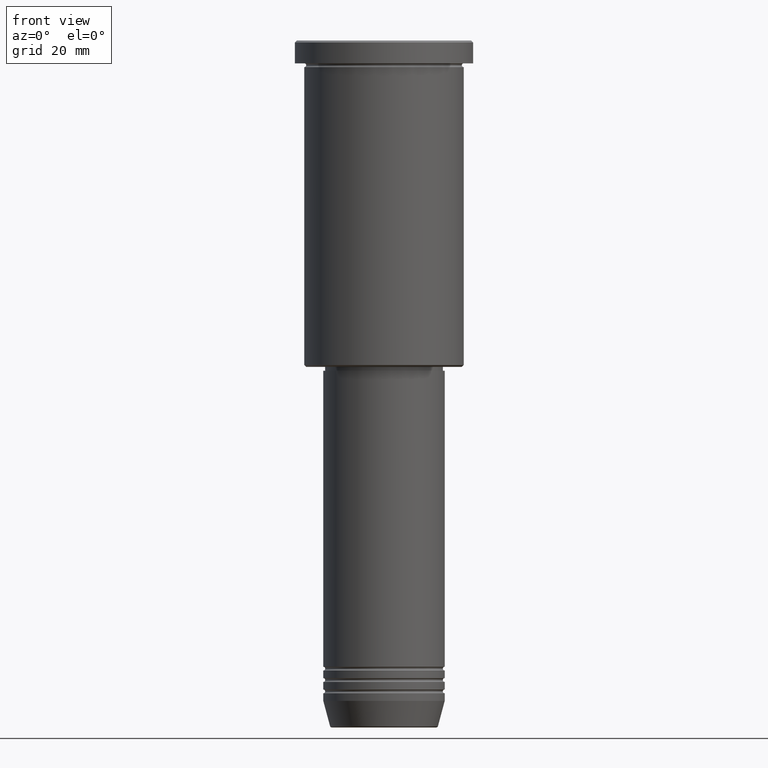
[diagram: clean part render]
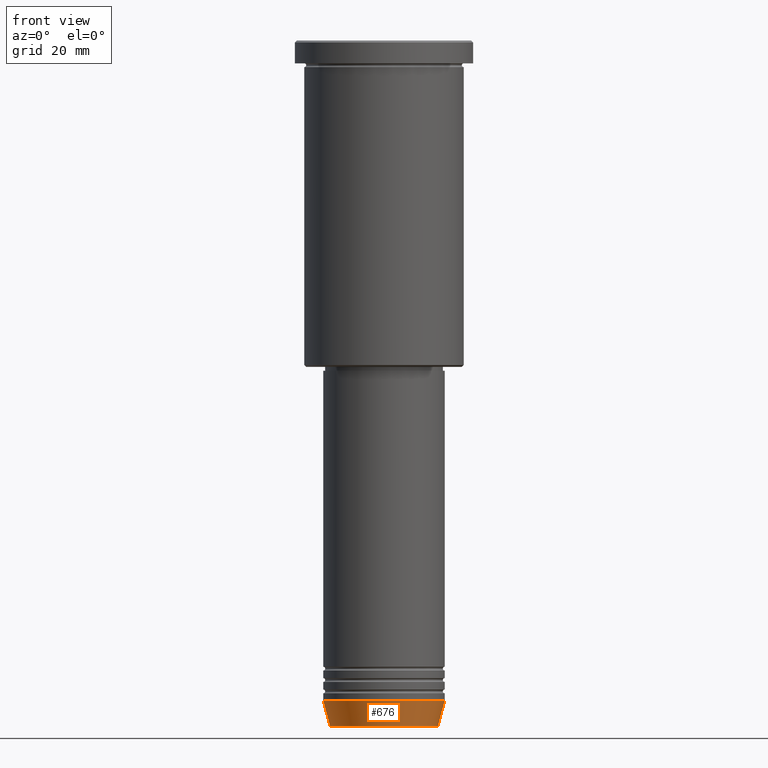
[diagram: same view with one face highlighted and labeled with its STEP entity id]
A machine part, front view. The second image highlights one B-rep face of the part: STEP entity #676.
In plain terms, the highlighted conical surface has half-angle 15 deg.
Its self-contained STEP definition (entity closure, byte-faithful):
#17 = AXIS2_PLACEMENT_3D ( 'NONE', #144, #511, #1066 ) ;
#71 = DIRECTION ( 'NONE',  ( 1.000000000000000000, 0.000000000000000000, 0.000000000000000000 ) ) ;
#144 = CARTESIAN_POINT ( 'NONE',  ( 0.000000000000000000, 0.000000000000000000, -174.0000000000000284 ) ) ;
#241 = ORIENTED_EDGE ( 'NONE', *, *, #417, .T. ) ;
#253 = CARTESIAN_POINT ( 'NONE',  ( 0.000000000000000000, 0.000000000000000000, -180.6294095225512422 ) ) ;
#291 = AXIS2_PLACEMENT_3D ( 'NONE', #363, #994, #71 ) ;
#363 = CARTESIAN_POINT ( 'NONE',  ( 0.000000000000000000, 0.000000000000000000, -174.0000000000000284 ) ) ;
#392 = LINE ( 'NONE', #758, #882 ) ;
#417 = EDGE_CURVE ( 'NONE', #739, #861, #919, .T. ) ;
#445 = DIRECTION ( 'NONE',  ( -0.000000000000000000, -0.000000000000000000, 1.000000000000000000 ) ) ;
#492 = CARTESIAN_POINT ( 'NONE',  ( -16.00000000000000000, 1.959434878635765131E-15, -174.0000000000000284 ) ) ;
#499 = VECTOR ( 'NONE', #710, 1000.000000000000000 ) ;
#511 = DIRECTION ( 'NONE',  ( -0.000000000000000000, -0.000000000000000000, 1.000000000000000000 ) ) ;
#600 = CIRCLE ( 'NONE', #17, 16.00000000000000000 ) ;
#610 = CARTESIAN_POINT ( 'NONE',  ( 16.00000000000000000, 0.000000000000000000, -174.0000000000000284 ) ) ;
#663 = CARTESIAN_POINT ( 'NONE',  ( 14.22365507213720193, 0.000000000000000000, -180.6294095225512422 ) ) ;
#674 = ORIENTED_EDGE ( 'NONE', *, *, #781, .T. ) ;
#676 = ADVANCED_FACE ( 'NONE', ( #717 ), #902, .T. ) ;
#701 = LINE ( 'NONE', #797, #499 ) ;
#710 = DIRECTION ( 'NONE',  ( -0.2588190451025209615, 3.169619151431767406E-17, 0.9659258262890682012 ) ) ;
#717 = FACE_OUTER_BOUND ( 'NONE', #929, .T. ) ;
#739 = VERTEX_POINT ( 'NONE', #825 ) ;
#745 = DIRECTION ( 'NONE',  ( 0.2588190451025209615, 0.000000000000000000, 0.9659258262890682012 ) ) ;
#752 = EDGE_CURVE ( 'NONE', #739, #924, #701, .T. ) ;
#758 = CARTESIAN_POINT ( 'NONE',  ( 16.00000000000000000, 0.000000000000000000, -174.0000000000000284 ) ) ;
#781 = EDGE_CURVE ( 'NONE', #861, #1059, #392, .T. ) ;
#797 = CARTESIAN_POINT ( 'NONE',  ( -16.00000000000000000, 1.959434878635765131E-15, -174.0000000000000284 ) ) ;
#825 = CARTESIAN_POINT ( 'NONE',  ( -14.22365507213720193, 1.850665122131324126E-15, -180.6294095225512422 ) ) ;
#834 = ORIENTED_EDGE ( 'NONE', *, *, #1023, .F. ) ;
#861 = VERTEX_POINT ( 'NONE', #663 ) ;
#882 = VECTOR ( 'NONE', #745, 1000.000000000000000 ) ;
#902 = CONICAL_SURFACE ( 'NONE', #291, 16.00000000000000000, 0.2617993877991496299 ) ;
#919 = CIRCLE ( 'NONE', #1055, 14.22365507213720193 ) ;
#924 = VERTEX_POINT ( 'NONE', #492 ) ;
#929 = EDGE_LOOP ( 'NONE', ( #931, #241, #674, #834 ) ) ;
#931 = ORIENTED_EDGE ( 'NONE', *, *, #752, .F. ) ;
#994 = DIRECTION ( 'NONE',  ( -0.000000000000000000, -0.000000000000000000, 1.000000000000000000 ) ) ;
#1023 = EDGE_CURVE ( 'NONE', #924, #1059, #600, .T. ) ;
#1055 = AXIS2_PLACEMENT_3D ( 'NONE', #253, #445, #1182 ) ;
#1059 = VERTEX_POINT ( 'NONE', #610 ) ;
#1066 = DIRECTION ( 'NONE',  ( 1.000000000000000000, 0.000000000000000000, 0.000000000000000000 ) ) ;
#1182 = DIRECTION ( 'NONE',  ( 1.000000000000000000, 0.000000000000000000, 0.000000000000000000 ) ) ;